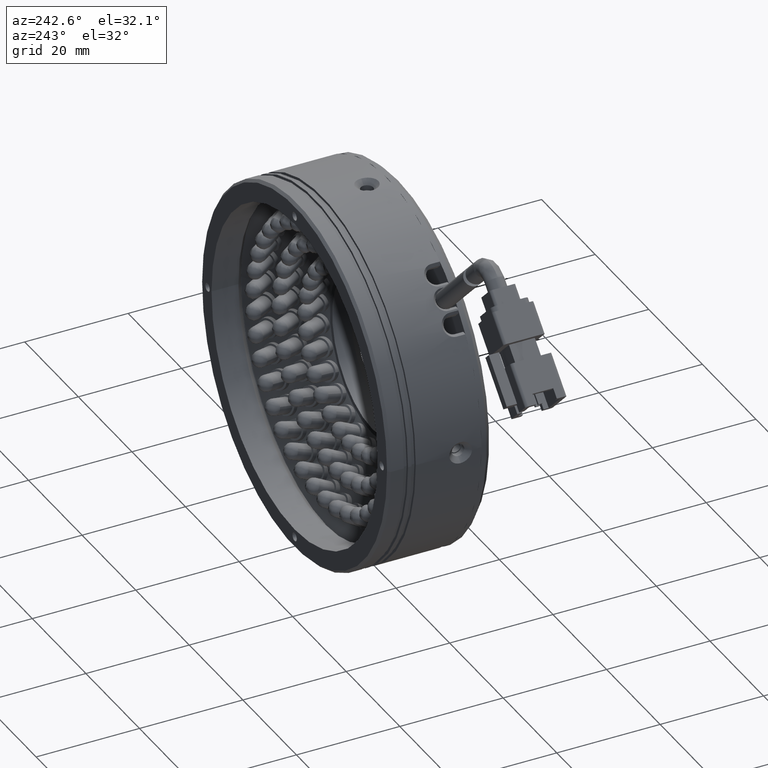
[diagram: clean part render]
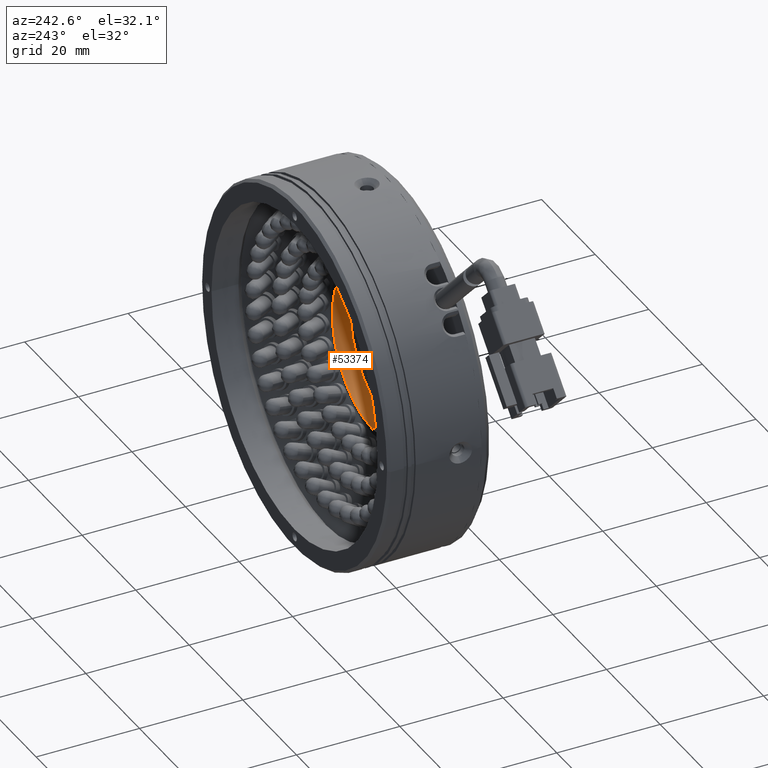
[diagram: same view with one face highlighted and labeled with its STEP entity id]
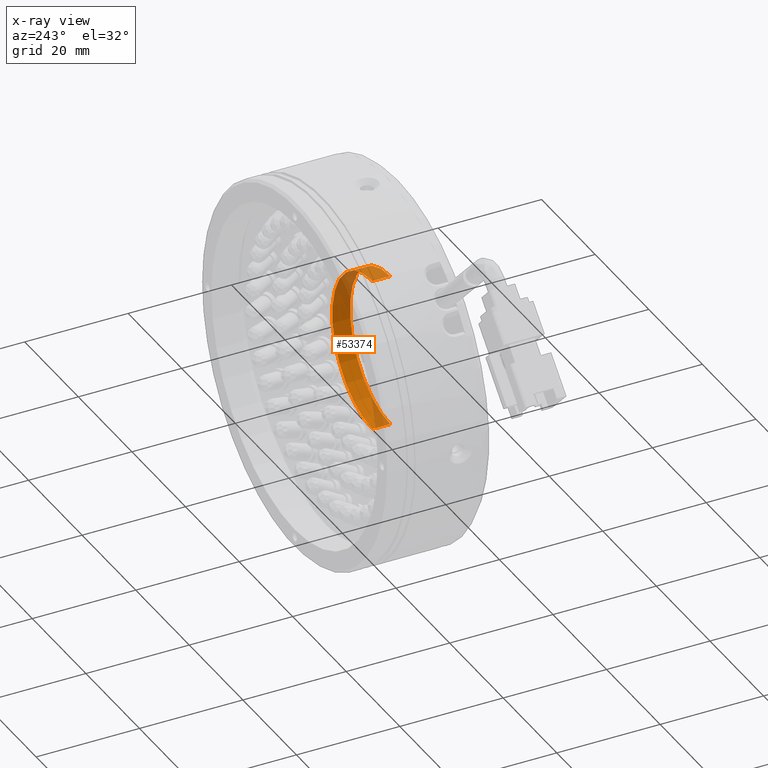
[diagram: x-ray of the same camera — body ghosted, the highlighted face saturated]
A machine part, auxiliary view. The second image highlights one B-rep face of the part: STEP entity #53374.
The next image is the same camera in x-ray: the body ghosted, the highlighted face saturated — about 31% of this face is hidden behind the body in this view.
In plain terms, the highlighted cylindrical surface (partial cylindrical patch) has radius 15 mm, axis along (-0, 1, -0).
Its self-contained STEP definition (entity closure, byte-faithful):
#1212 = EDGE_CURVE ( 'NONE', #53596, #49026, #7801, .T. ) ;
#2237 = DIRECTION ( 'NONE',  ( 0.0000000000000000000, 0.0000000000000000000, 1.000000000000000000 ) ) ;
#7801 = LINE ( 'NONE', #21627, #42796 ) ;
#8301 = FACE_OUTER_BOUND ( 'NONE', #36615, .T. ) ;
#8957 = CARTESIAN_POINT ( 'NONE',  ( -3.499229287090538600, 49.67432128801908700, 0.0000000000000000000 ) ) ;
#14625 = CARTESIAN_POINT ( 'NONE',  ( -3.499229287090538600, 36.01850366302610200, 15.00000000000001400 ) ) ;
#15691 = DIRECTION ( 'NONE',  ( -0.0000000000000000000, 1.000000000000000000, -0.0000000000000000000 ) ) ;
#18795 = CARTESIAN_POINT ( 'NONE',  ( -3.499229287090538600, 32.57623868994507900, 0.0000000000000000000 ) ) ;
#19362 = ORIENTED_EDGE ( 'NONE', *, *, #51271, .F. ) ;
#21627 = CARTESIAN_POINT ( 'NONE',  ( -3.499229287090538600, 49.67432128801908700, 15.00000000000001400 ) ) ;
#21765 = VERTEX_POINT ( 'NONE', #31789 ) ;
#22776 = CIRCLE ( 'NONE', #53183, 15.00000000000001400 ) ;
#25124 = DIRECTION ( 'NONE',  ( 0.0000000000000000000, -1.000000000000000000, 0.0000000000000000000 ) ) ;
#25823 = DIRECTION ( 'NONE',  ( 0.0000000000000000000, 0.0000000000000000000, -1.000000000000000000 ) ) ;
#28481 = VERTEX_POINT ( 'NONE', #76718 ) ;
#28649 = DIRECTION ( 'NONE',  ( -0.0000000000000000000, 1.000000000000000000, -0.0000000000000000000 ) ) ;
#31789 = CARTESIAN_POINT ( 'NONE',  ( -3.499229287090536800, 36.01850366302610200, -15.00000000000001400 ) ) ;
#33993 = EDGE_CURVE ( 'NONE', #21765, #49026, #22776, .T. ) ;
#34560 = CIRCLE ( 'NONE', #36153, 15.00000000000001200 ) ;
#36153 = AXIS2_PLACEMENT_3D ( 'NONE', #18795, #67693, #25823 ) ;
#36615 = EDGE_LOOP ( 'NONE', ( #19362, #53496, #71869, #86254 ) ) ;
#36734 = CYLINDRICAL_SURFACE ( 'NONE', #67428, 15.00000000000001400 ) ;
#42796 = VECTOR ( 'NONE', #28649, 1000.000000000000000 ) ;
#49026 = VERTEX_POINT ( 'NONE', #14625 ) ;
#51271 = EDGE_CURVE ( 'NONE', #28481, #21765, #60640, .T. ) ;
#53183 = AXIS2_PLACEMENT_3D ( 'NONE', #67003, #25124, #74104 ) ;
#53374 = ADVANCED_FACE ( 'NONE', ( #8301 ), #36734, .F. ) ;
#53496 = ORIENTED_EDGE ( 'NONE', *, *, #68454, .T. ) ;
#53596 = VERTEX_POINT ( 'NONE', #62722 ) ;
#59223 = CARTESIAN_POINT ( 'NONE',  ( -3.499229287090536800, 49.67432128801908700, -15.00000000000001400 ) ) ;
#60640 = LINE ( 'NONE', #59223, #62788 ) ;
#62722 = CARTESIAN_POINT ( 'NONE',  ( -3.499229287090538600, 32.57623868994507900, 15.00000000000001200 ) ) ;
#62788 = VECTOR ( 'NONE', #66267, 1000.000000000000000 ) ;
#66267 = DIRECTION ( 'NONE',  ( -0.0000000000000000000, 1.000000000000000000, -0.0000000000000000000 ) ) ;
#67003 = CARTESIAN_POINT ( 'NONE',  ( -3.499229287090538600, 36.01850366302610200, 0.0000000000000000000 ) ) ;
#67428 = AXIS2_PLACEMENT_3D ( 'NONE', #8957, #15691, #2237 ) ;
#67693 = DIRECTION ( 'NONE',  ( -0.0000000000000000000, -1.000000000000000000, -0.0000000000000000000 ) ) ;
#68454 = EDGE_CURVE ( 'NONE', #28481, #53596, #34560, .T. ) ;
#71869 = ORIENTED_EDGE ( 'NONE', *, *, #1212, .T. ) ;
#74104 = DIRECTION ( 'NONE',  ( 0.0000000000000000000, 0.0000000000000000000, 1.000000000000000000 ) ) ;
#76718 = CARTESIAN_POINT ( 'NONE',  ( -3.499229287090536800, 32.57623868994507900, -15.00000000000001200 ) ) ;
#86254 = ORIENTED_EDGE ( 'NONE', *, *, #33993, .F. ) ;